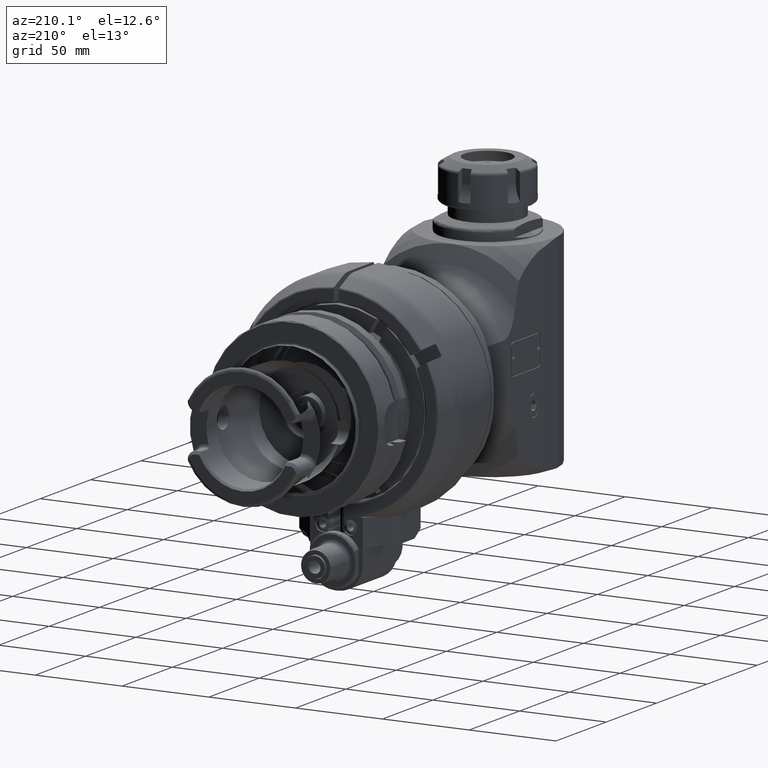
[diagram: clean part render]
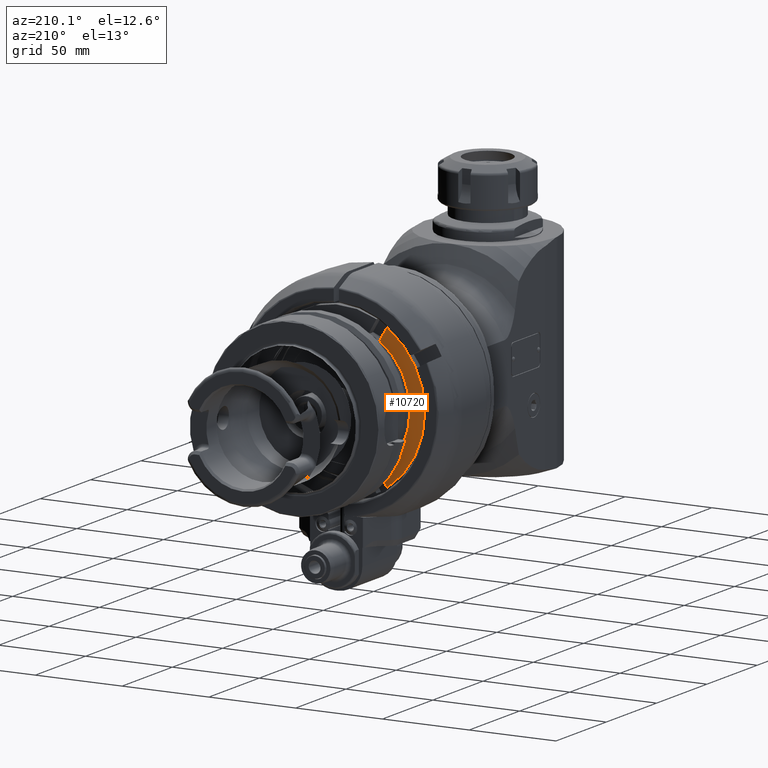
[diagram: same view with one face highlighted and labeled with its STEP entity id]
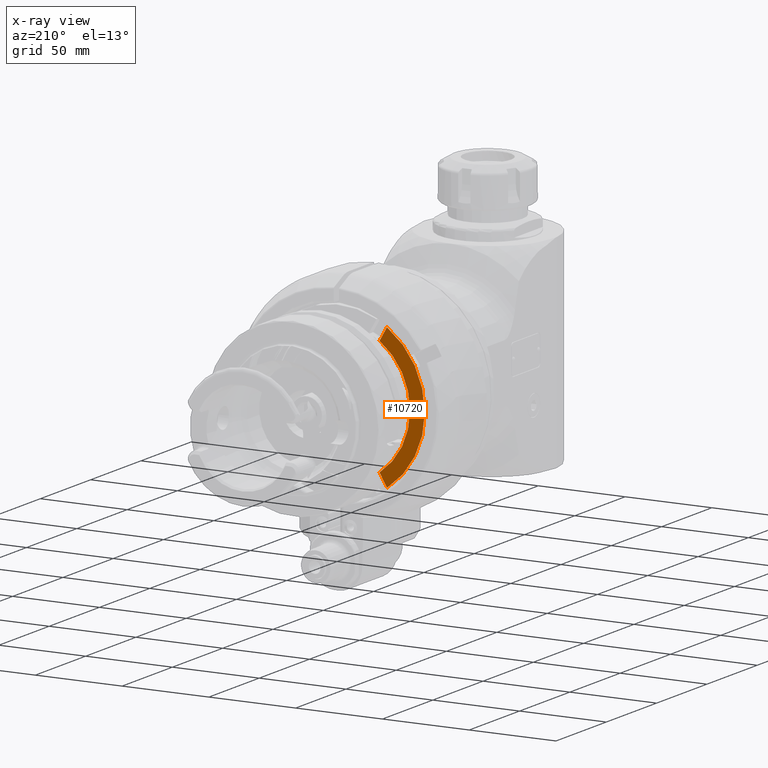
[diagram: x-ray of the same camera — body ghosted, the highlighted face saturated]
A machine part, auxiliary view. The second image highlights one B-rep face of the part: STEP entity #10720.
The next image is the same camera in x-ray: the body ghosted, the highlighted face saturated — about 0% of this face is hidden behind the body in this view.
In plain terms, the highlighted planar face has unit normal (0, 1, 0).
Its self-contained STEP definition (entity closure, byte-faithful):
#951=LINE('',#21966,#1625);
#955=LINE('',#21974,#1629);
#1625=VECTOR('',#14316,8.52566613265077);
#1629=VECTOR('',#14322,8.52567008075319);
#2282=PLANE('',#11831);
#2782=FACE_OUTER_BOUND('',#3477,.T.);
#3477=EDGE_LOOP('',(#8986,#8987,#8988,#8989));
#4153=CIRCLE('',#11803,41.);
#4165=CIRCLE('',#11832,49.5);
#5006=VERTEX_POINT('',#21718);
#5007=VERTEX_POINT('',#21727);
#5037=VERTEX_POINT('',#21965);
#5040=VERTEX_POINT('',#21973);
#6385=EDGE_CURVE('',#5007,#5006,#4153,.T.);
#6430=EDGE_CURVE('',#5006,#5037,#951,.T.);
#6434=EDGE_CURVE('',#5040,#5007,#955,.T.);
#6435=EDGE_CURVE('',#5037,#5040,#4165,.T.);
#8986=ORIENTED_EDGE('',*,*,#6434,.T.);
#8987=ORIENTED_EDGE('',*,*,#6385,.T.);
#8988=ORIENTED_EDGE('',*,*,#6430,.T.);
#8989=ORIENTED_EDGE('',*,*,#6435,.T.);
#10720=ADVANCED_FACE('',(#2782),#2282,.T.);
#11803=AXIS2_PLACEMENT_3D('',#21728,#14246,#14247);
#11831=AXIS2_PLACEMENT_3D('',#21972,#14320,#14321);
#11832=AXIS2_PLACEMENT_3D('',#21975,#14323,#14324);
#14246=DIRECTION('center_axis',(0.,-1.,0.));
#14247=DIRECTION('ref_axis',(-1.,0.,0.));
#14316=DIRECTION('',(-0.499999999998814,1.62516138114504E-13,-0.866025403785124));
#14320=DIRECTION('center_axis',(0.,1.,0.));
#14321=DIRECTION('ref_axis',(-1.,0.,0.));
#14322=DIRECTION('',(0.499999999998889,4.4171032468519E-14,-0.86602540378508));
#14323=DIRECTION('center_axis',(0.,1.,0.));
#14324=DIRECTION('ref_axis',(-0.559982680899026,0.,-0.828504313261639));
#21718=CARTESIAN_POINT('',(-23.45625721121,39.99999976923,-33.62742924521));
#21727=CARTESIAN_POINT('',(-23.456257226093,39.9999997692301,33.6274292767711));
#21728=CARTESIAN_POINT('Origin',(0.,39.99999976923,0.));
#21965=CARTESIAN_POINT('',(-27.7191427045,39.99999976923,-41.01096350645));
#21966=CARTESIAN_POINT('',(-23.45630963819,39.99999976924,-33.62752005139));
#21972=CARTESIAN_POINT('Origin',(-31.7,39.99999976924,0.));
#21973=CARTESIAN_POINT('',(-27.7191427045,39.99999976923,41.01096350645));
#21974=CARTESIAN_POINT('',(-27.7191427045,39.99999976923,41.01096350645));
#21975=CARTESIAN_POINT('Origin',(0.,39.99999976923,0.));